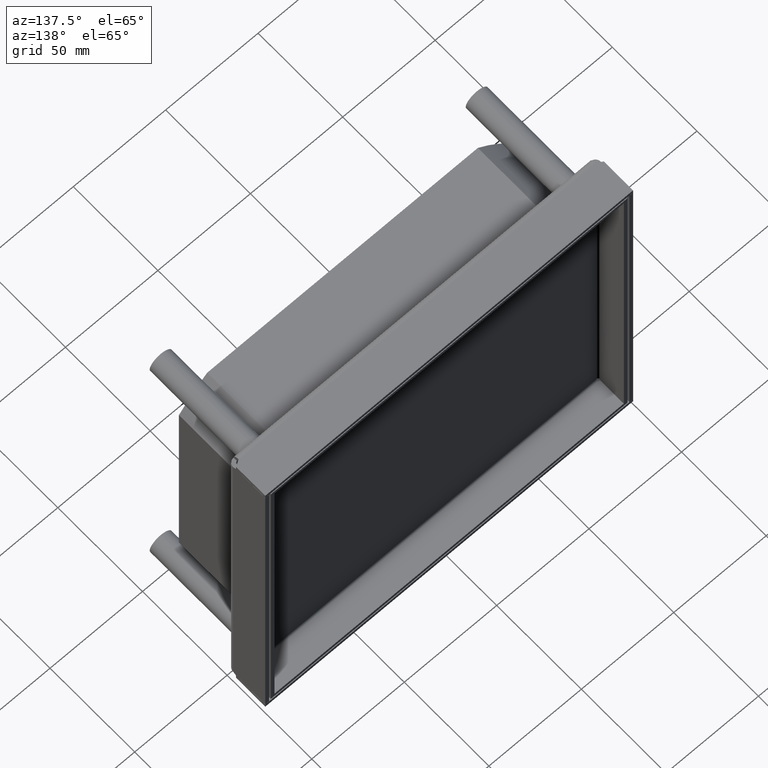
[diagram: clean part render]
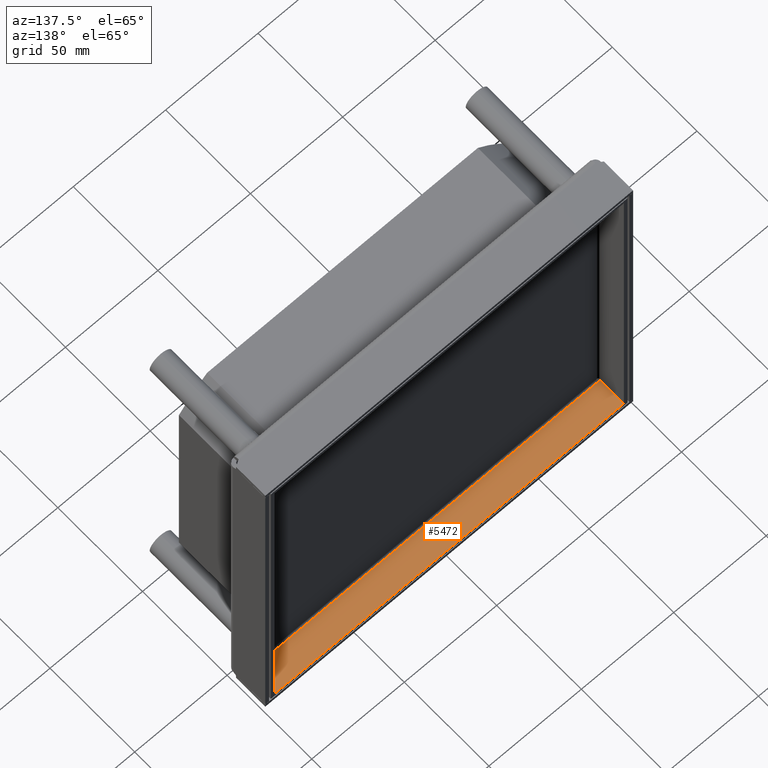
[diagram: same view with one face highlighted and labeled with its STEP entity id]
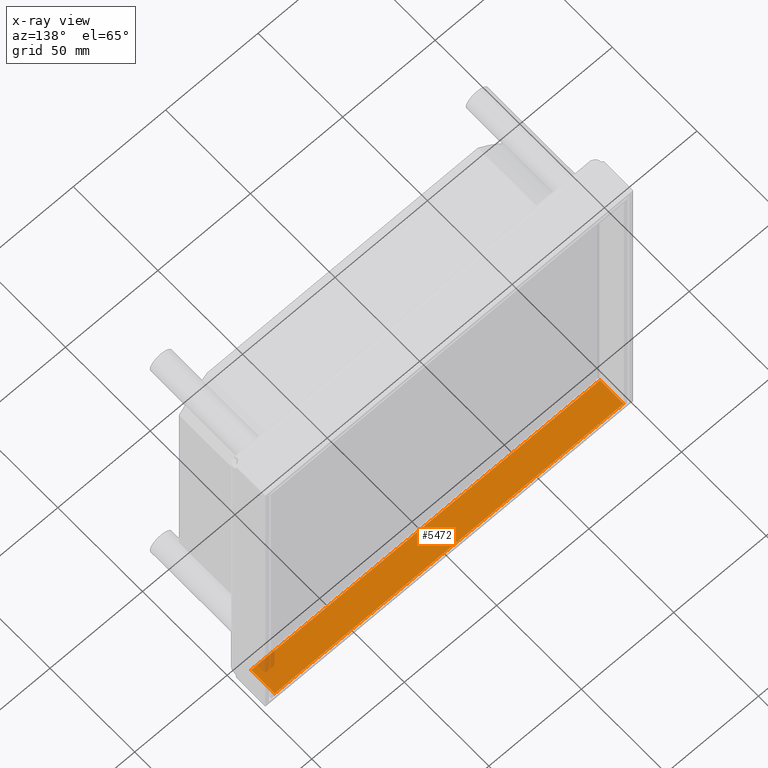
[diagram: x-ray of the same camera — body ghosted, the highlighted face saturated]
A machine part, auxiliary view. The second image highlights one B-rep face of the part: STEP entity #5472.
The next image is the same camera in x-ray: the body ghosted, the highlighted face saturated — about 1% of this face is hidden behind the body in this view.
In plain terms, the highlighted planar face has unit normal (0, 0, -1).
Its self-contained STEP definition (entity closure, byte-faithful):
#4712=DIRECTION('',(0.E0,0.E0,1.E0));
#4713=VECTOR('',#4712,9.5E-1);
#4714=CARTESIAN_POINT('',(-9.45E1,3.E0,9.35E1));
#4715=LINE('',#4714,#4713);
#4716=DIRECTION('',(0.E0,1.E0,0.E0));
#4717=VECTOR('',#4716,1.4E1);
#4718=CARTESIAN_POINT('',(-9.45E1,3.E0,9.445E1));
#4719=LINE('',#4718,#4717);
#4720=DIRECTION('',(0.E0,0.E0,-1.E0));
#4721=VECTOR('',#4720,1.889E2);
#4722=CARTESIAN_POINT('',(-9.45E1,1.7E1,9.445E1));
#4723=LINE('',#4722,#4721);
#4728=DIRECTION('',(0.E0,0.E0,-1.E0));
#4729=VECTOR('',#4728,1.87E2);
#4730=CARTESIAN_POINT('',(-9.45E1,3.E0,9.35E1));
#4731=LINE('',#4730,#4729);
#4792=DIRECTION('',(0.E0,1.E0,0.E0));
#4793=VECTOR('',#4792,1.4E1);
#4794=CARTESIAN_POINT('',(-9.45E1,3.E0,-9.445E1));
#4795=LINE('',#4794,#4793);
#4800=DIRECTION('',(0.E0,0.E0,-1.E0));
#4801=VECTOR('',#4800,9.5E-1);
#4802=CARTESIAN_POINT('',(-9.45E1,3.E0,-9.35E1));
#4803=LINE('',#4802,#4801);
#4898=CARTESIAN_POINT('',(-9.45E1,3.E0,-9.35E1));
#4899=VERTEX_POINT('',#4898);
#4910=CARTESIAN_POINT('',(-9.45E1,1.7E1,9.445E1));
#4911=CARTESIAN_POINT('',(-9.45E1,1.7E1,-9.445E1));
#4912=VERTEX_POINT('',#4910);
#4913=VERTEX_POINT('',#4911);
#4914=CARTESIAN_POINT('',(-9.45E1,3.E0,9.35E1));
#4915=VERTEX_POINT('',#4914);
#4916=CARTESIAN_POINT('',(-9.45E1,3.E0,9.445E1));
#4917=VERTEX_POINT('',#4916);
#4918=CARTESIAN_POINT('',(-9.45E1,3.E0,-9.445E1));
#4919=VERTEX_POINT('',#4918);
#5454=CARTESIAN_POINT('',(-9.45E1,0.E0,-7.12844E1));
#5455=DIRECTION('',(-1.E0,0.E0,0.E0));
#5456=DIRECTION('',(0.E0,0.E0,1.E0));
#5457=AXIS2_PLACEMENT_3D('',#5454,#5455,#5456);
#5458=PLANE('',#5457);
#5460=ORIENTED_EDGE('',*,*,#5459,.F.);
#5462=ORIENTED_EDGE('',*,*,#5461,.T.);
#5464=ORIENTED_EDGE('',*,*,#5463,.T.);
#5465=ORIENTED_EDGE('',*,*,#5444,.T.);
#5467=ORIENTED_EDGE('',*,*,#5466,.F.);
#5469=ORIENTED_EDGE('',*,*,#5468,.F.);
#5470=EDGE_LOOP('',(#5460,#5462,#5464,#5465,#5467,#5469));
#5471=FACE_OUTER_BOUND('',#5470,.F.);
#5444=EDGE_CURVE('',#4912,#4913,#4723,.T.);
#5459=EDGE_CURVE('',#4915,#4899,#4731,.T.);
#5461=EDGE_CURVE('',#4915,#4917,#4715,.T.);
#5463=EDGE_CURVE('',#4917,#4912,#4719,.T.);
#5466=EDGE_CURVE('',#4919,#4913,#4795,.T.);
#5468=EDGE_CURVE('',#4899,#4919,#4803,.T.);
#5472=ADVANCED_FACE('',(#5471),#5458,.F.);